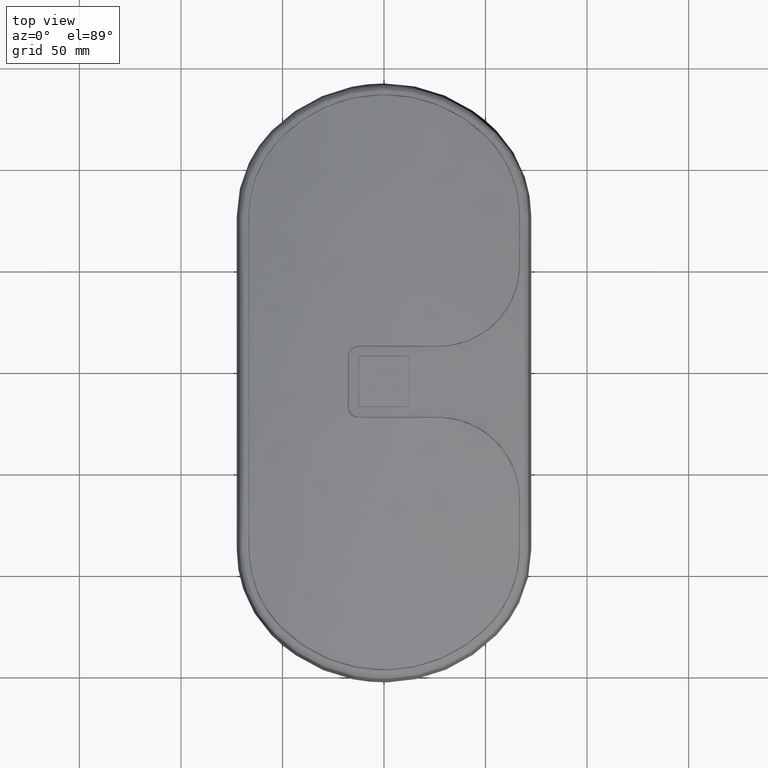
[diagram: clean part render]
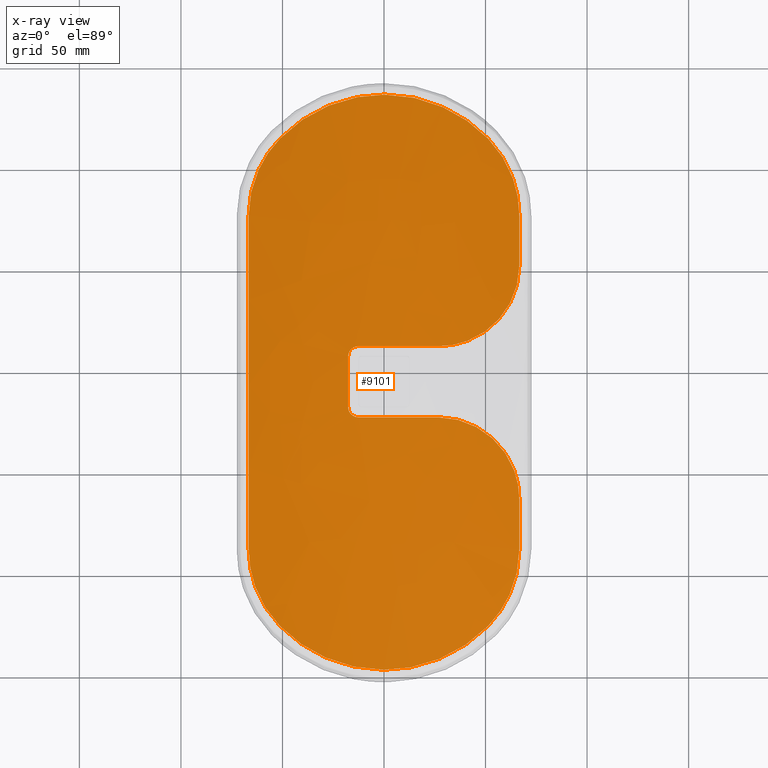
[diagram: x-ray — body ghosted, one internal face saturated and labeled with its STEP entity id]
A machine part, top view, then the same camera in x-ray: the body is ghosted and one INTERNAL B-rep face — a face not visible from any outside direction — is saturated and labeled: STEP entity #9101.
In plain terms, the highlighted face is a freeform B-spline surface patch.
Its self-contained STEP definition (entity closure, byte-faithful):
#6 = CARTESIAN_POINT ( 'NONE',  ( -10.86845133219649817, -99.88406189619740871, 195.4578889195691147 ) ) ;
#11 = CARTESIAN_POINT ( 'NONE',  ( 44.19579688673636042, -82.98597418233897827, 194.0003798034920806 ) ) ;
#42 = CARTESIAN_POINT ( 'NONE',  ( 61.55103698957692870, 5.457877891611070176, 200.5412568197478436 ) ) ;
#93 = CARTESIAN_POINT ( 'NONE',  ( -15.32122995263451948, -96.56639725986448752, 195.5887616676681375 ) ) ;
#97 = CARTESIAN_POINT ( 'NONE',  ( -2.393900368848504545, 185.0730993952077483, 195.8147413070358027 ) ) ;
#127 = CARTESIAN_POINT ( 'NONE',  ( -67.39078578683019316, 140.0421699867345922, 194.3001971569460125 ) ) ;
#131 = CARTESIAN_POINT ( 'NONE',  ( 61.27761717797284291, 149.2239221105816114, 193.0671699322844290 ) ) ;
#176 = CARTESIAN_POINT ( 'NONE',  ( 47.83212296978011580, -79.93836249783592507, 193.7271333310420118 ) ) ;
#203 = CARTESIAN_POINT ( 'NONE',  ( 51.49204318280401793, 17.27061767772977063, 203.9136234275749757 ) ) ;
#204 = CARTESIAN_POINT ( 'NONE',  ( 22.68770224404190117, 140.0434891847485801, 204.3774843817956253 ) ) ;
#229 = CARTESIAN_POINT ( 'NONE',  ( 26.64111920286593360, 60.91993920219265846, 208.8467953270715327 ) ) ;
#250 = CARTESIAN_POINT ( 'NONE',  ( 32.16443781715616979, -90.59253444420407675, 194.8213298773472957 ) ) ;
#256 = CARTESIAN_POINT ( 'NONE',  ( -28.91925437094565154, 178.9783870442439309, 195.0086557970860213 ) ) ;
#269 = EDGE_CURVE ( 'Defeatured_0_17+Defeatured_0_10+Defeatured_0_9+Defeatured_0_11', #8797, #14700, #798, .T. ) ;
#275 = CARTESIAN_POINT ( 'NONE',  ( -16.62719656224668796, 27.87164152967057973, 209.9206235047949178 ) ) ;
#277 = CARTESIAN_POINT ( 'NONE',  ( 53.00954735621476743, 16.02679873206650996, 203.4787835579905391 ) ) ;
#278 = CARTESIAN_POINT ( 'NONE',  ( 11.56936859132130202, 91.73886852043558804, 210.5169212958876983 ) ) ;
#324 = CARTESIAN_POINT ( 'NONE',  ( -66.64208991724485998, 129.1730435644680597, 194.3204679816685143 ) ) ;
#356 = CARTESIAN_POINT ( 'NONE',  ( -58.12672842373760318, 91.73904579234459788, 202.9928323966905737 ) ) ;
#408 = B_SPLINE_CURVE_WITH_KNOTS ( 'NONE', 3,
 ( #6203, #8180, #5863, #12966, #6907, #131, #10729, #11769, #9458, #3495, #3259, #11932, #13042, #14396, #4970, #15333 ),
 .UNSPECIFIED., .F., .F.,
 ( 4, 2, 2, 2, 2, 2, 2, 4 ),
 ( 1.389512421408388951E-16, 0.01048953606909416164, 0.01573430410364117307, 0.02097907213818818450, 0.02622384017273520634, 0.02884622419000867910, 0.03146860820728215186, 0.04195814427637589716 ),
 .UNSPECIFIED. ) ;
#436 = CARTESIAN_POINT ( 'NONE',  ( -67.39078434659579386, -53.19007413596056466, 194.3001930701857987 ) ) ;
#506 = CARTESIAN_POINT ( 'NONE',  ( -69.12355918883129391, -4.886616579301270136, 199.2171824689564517 ) ) ;
#507 = EDGE_CURVE ( 'Defeatured_0_17+Defeatured_0_6+Defeatured_0_5+Defeatured_0_7', #8581, #14769, #408, .T. ) ;
#539 = CARTESIAN_POINT ( 'NONE',  ( 46.68188987107377130, 66.29628765974824489, 205.1812054506003165 ) ) ;
#540 = CARTESIAN_POINT ( 'NONE',  ( 42.27875346003234114, 171.2898749563198066, 194.1429210588339913 ) ) ;
#556 = CARTESIAN_POINT ( 'NONE',  ( -36.26838899208387090, -88.35489307148847615, 194.5619996797805697 ) ) ;
#588 = CARTESIAN_POINT ( 'NONE',  ( 48.42577529310789686, -99.88556568018931614, 189.4605208246317147 ) ) ;
#670 = CARTESIAN_POINT ( 'NONE',  ( 29.08837067963010270, -4.887392491449774390, 208.8363009730052511 ) ) ;
#744 = CARTESIAN_POINT ( 'NONE',  ( 45.42020619370499901, -53.19126285975996637, 200.6091582931774440 ) ) ;
#772 = CARTESIAN_POINT ( 'NONE',  ( 64.49322646180976903, 87.97155844630171373, 199.2006411322924180 ) ) ;
#798 = B_SPLINE_CURVE_WITH_KNOTS ( 'NONE', 3,
 ( #5258, #3760, #5028, #2578, #12438, #8610, #3832, #6370, #6221, #11007, #8689, #7491, #6138, #1375, #12206, #2655, #13471, #12510, #11086, #13694 ),
 .UNSPECIFIED., .F., .F.,
 ( 4, 2, 2, 2, 2, 2, 2, 2, 2, 4 ),
 ( 3.469446951953614189E-18, 0.0009771675545568001432, 0.001465751331835198372, 0.001954335109113596817, 0.002931502663670385467, 0.003908670218227174552, 0.004885837772783964070, 0.005863005327340751853, 0.006840172881897541371, 0.007817340436454330022 ),
 .UNSPECIFIED. ) ;
#854 = CARTESIAN_POINT ( 'NONE',  ( 66.64114949925664177, 98.24303119079422686, 197.7082447678883739 ) ) ;
#862 = VERTEX_POINT ( 'NONE', #4552 ) ;
#1032 = CARTESIAN_POINT ( 'NONE',  ( -64.86447545474278797, -52.60111890020306191, 193.4459904745401673 ) ) ;
#1164 = CARTESIAN_POINT ( 'NONE',  ( 29.30656831340549218, 25.91995794331132075, 208.5105895920193007 ) ) ;
#1260 = CARTESIAN_POINT ( 'NONE',  ( -62.00657064532256868, -60.79948331485316260, 193.0952046008787590 ) ) ;
#1280 = CARTESIAN_POINT ( 'NONE',  ( -59.63194501122929836, 152.3132749765679250, 193.0607593271341784 ) ) ;
#1286 = CARTESIAN_POINT ( 'NONE',  ( -9.541060714184581570, 184.4406245990692810, 195.7283543516239490 ) ) ;
#1307 = CARTESIAN_POINT ( 'NONE',  ( -17.48312617921987666, 29.62689727286549868, 209.8901184210132271 ) ) ;
#1311 = CARTESIAN_POINT ( 'NONE',  ( 69.11565091435801378, 91.73886890376958547, 199.2131056313251065 ) ) ;
#1333 = CARTESIAN_POINT ( 'NONE',  ( -66.64037681888412123, 125.6884412940841571, 194.7753988512430396 ) ) ;
#1340 = CARTESIAN_POINT ( 'NONE',  ( 0.4593757799958043675, 60.91995793730247755, 210.6277050054260087 ) ) ;
#1365 = CARTESIAN_POINT ( 'NONE',  ( -16.57840404618952235, 183.1612583401040695, 195.5537132133451053 ) ) ;
#1375 = CARTESIAN_POINT ( 'NONE',  ( -16.98691517925766092, 58.43055370001520998, 209.9046605951380684 ) ) ;
#1393 = CARTESIAN_POINT ( 'NONE',  ( 66.64120984125983682, 117.4496942195145124, 195.8254337475949569 ) ) ;
#1394 = CARTESIAN_POINT ( 'NONE',  ( 67.38991157764669993, 140.0424819250056316, 194.2961119366260334 ) ) ;
#1445 = CARTESIAN_POINT ( 'NONE',  ( -63.31307450575034323, 144.4401428913806740, 193.1896955776973641 ) ) ;
#1450 = CARTESIAN_POINT ( 'NONE',  ( -33.23319933961029449, 176.8952261641586006, 194.7568251100058774 ) ) ;
#1478 = CARTESIAN_POINT ( 'NONE',  ( 64.48886775854057873, -1.069626879226956317, 199.2067098573686224 ) ) ;
#1479 = CARTESIAN_POINT ( 'NONE',  ( 5.695258208661610588, 140.0420314953855723, 205.5391116499234272 ) ) ;
#1521 = CARTESIAN_POINT ( 'NONE',  ( 11.90640710486456122, -97.22878894683586282, 195.6806544764669411 ) ) ;
#1551 = CARTESIAN_POINT ( 'NONE',  ( -34.92815747985240193, 91.73946109866356835, 207.8703741651306700 ) ) ;
#1582 = ORIENTED_EDGE ( 'NONE', *, *, #13094, .T. ) ;
#1594 = CARTESIAN_POINT ( 'NONE',  ( -51.25888823908042724, 163.4522663118064543, 193.4712999229875834 ) ) ;
#1611 = CARTESIAN_POINT ( 'NONE',  ( -66.64209007335939816, 112.0428289692929695, 196.5259336558687835 ) ) ;
#1621 = CARTESIAN_POINT ( 'NONE',  ( -13.95142408352167429, 26.08098689405976600, 210.0695824270967478 ) ) ;
#1626 = CARTESIAN_POINT ( 'NONE',  ( 64.05323042201339945, 186.7366601352135831, 184.7899919721032518 ) ) ;
#1650 = CARTESIAN_POINT ( 'NONE',  ( -51.25909438623873626, -76.59992893920420443, 193.4712830558305825 ) ) ;
#1701 = CARTESIAN_POINT ( 'NONE',  ( 40.79549444014219972, 43.42604775078962120, 206.9001175110504676 ) ) ;
#1715 = VERTEX_POINT ( 'NONE', #8112 ) ;
#1734 = CARTESIAN_POINT ( 'NONE',  ( 35.17408531014780237, 61.83508960150948042, 207.5760873358714207 ) ) ;
#1736 = CARTESIAN_POINT ( 'NONE',  ( 47.82945149417389530, 166.7933028539416682, 193.7273406819197419 ) ) ;
#1780 = CARTESIAN_POINT ( 'NONE',  ( 58.90698003452750697, -99.88496339122451673, 186.5611264845521191 ) ) ;
#1790 = CARTESIAN_POINT ( 'NONE',  ( 53.70865868640738938, -74.08894832792108787, 193.2903829577732040 ) ) ;
#1814 = CARTESIAN_POINT ( 'NONE',  ( 23.36184137163460761, 181.1906883018984615, 195.2906358225356485 ) ) ;
#1831 = CARTESIAN_POINT ( 'NONE',  ( -47.83029589753083144, -79.94120819631197605, 193.7256569380514861 ) ) ;
#1861 = B_SPLINE_CURVE_WITH_KNOTS ( 'NONE', 3,
 ( #8707, #1164, #14819, #6006, #6153, #10870, #5043, #3705, #15715, #4808, #7506, #9688, #6079, #11101, #203, #277, #8549, #13484, #2595, #9919, #12378, #14522, #42, #2446, #13417, #14745, #1478, #3623, #11026, #8476, #13338, #4877, #6314, #11171 ),
 .UNSPECIFIED., .F., .F.,
 ( 4, 2, 2, 2, 2, 2, 2, 2, 2, 2, 2, 2, 2, 2, 2, 2, 4 ),
 ( 0.0000000000000000000, 0.007942148595555895835, 0.01191322289333386283, 0.01389876004222283766, 0.01588429719111181249, 0.02382644578666764934, 0.02581198293555660855, 0.02779752008444556777, 0.03176859438222349313, 0.03971074297777932305, 0.04169628012666827532, 0.04368181727555722066, 0.04765289157333512521, 0.05162396587111302282, 0.05360950302000198897, 0.05559504016889095512, 0.06353718876444680586 ),
 .UNSPECIFIED. ) ;
#1866 = CARTESIAN_POINT ( 'NONE',  ( 17.01118603917529981, -53.19088900911937401, 204.8433658646745243 ) ) ;
#1896 = CARTESIAN_POINT ( 'NONE',  ( 31.93408112266914856, 61.18363157118347573, 208.1238406403484191 ) ) ;
#1946 = CARTESIAN_POINT ( 'NONE',  ( 5.823086962531080601, 43.42604775102459769, 210.7531069119989695 ) ) ;
#1982 = B_SPLINE_CURVE_WITH_KNOTS ( 'NONE', 3,
 ( #9966, #4934, #176, #11, #4851, #8755, #3899, #9886, #250, #14644, #2564, #3974, #2720, #7557, #8836, #14569, #1521, #3749, #11217, #2490, #6128, #13684, #3672, #8524, #10993, #93, #12270, #7714, #4286, #15094, #12653, #4208, #11372, #6440, #556, #5246, #4126, #7861, #4046, #1831, #11298, #9154 ),
 .UNSPECIFIED., .F., .F.,
 ( 4, 2, 2, 2, 2, 2, 2, 2, 2, 2, 2, 2, 2, 2, 2, 2, 2, 2, 2, 2, 4 ),
 ( 0.0000000000000000000, 0.007112124180461031585, 0.01422424836092206317, 0.02133637254138309389, 0.02489243463161361358, 0.02844849672184412287, 0.03556062090230514838, 0.04267274508276617390, 0.04622880717299668318, 0.04978486926322718553, 0.05689699344368821105, 0.06400911762414922268, 0.07112124180461026901, 0.07467730389484077136, 0.07823336598507128758, 0.08534549016553236167, 0.09245761434599340800, 0.09601367643622395198, 0.09956973852645448209, 0.1066818627069155700, 0.1137939868873766303 ),
 .UNSPECIFIED. ) ;
#2233 = CARTESIAN_POINT ( 'NONE',  ( -65.28408246139946414, -50.89993184557577166, 193.5595931319872705 ) ) ;
#2417 = CARTESIAN_POINT ( 'NONE',  ( 9.439177540592357474, 184.4836592196471088, 195.7357918055488710 ) ) ;
#2446 = CARTESIAN_POINT ( 'NONE',  ( 62.47968044737748272, 3.733138582279587503, 200.1540966411544105 ) ) ;
#2479 = CARTESIAN_POINT ( 'NONE',  ( -17.65040047413037172, 55.91994962290539206, 209.9022747741108503 ) ) ;
#2490 = CARTESIAN_POINT ( 'NONE',  ( 4.770567369397487489, -98.10097192189518012, 195.7994440407218804 ) ) ;
#2494 = CARTESIAN_POINT ( 'NONE',  ( -42.30970844283091736, 171.2670822227914584, 194.1397869298681940 ) ) ;
#2519 = CARTESIAN_POINT ( 'NONE',  ( 0.009409056436577425964, 186.7360693584656133, 195.4584239088570428 ) ) ;
#2564 = CARTESIAN_POINT ( 'NONE',  ( 28.91833193756821885, -92.12628074902224284, 195.0081067602606026 ) ) ;
#2578 = CARTESIAN_POINT ( 'NONE',  ( -13.78311636226125714, 60.79268610541606677, 210.0798319855839509 ) ) ;
#2595 = CARTESIAN_POINT ( 'NONE',  ( 58.37100108725392289, 10.41591496485720292, 201.7622841137673220 ) ) ;
#2596 = CARTESIAN_POINT ( 'NONE',  ( -11.54801681910679889, 91.73869061709055472, 210.7521766883074008 ) ) ;
#2655 = CARTESIAN_POINT ( 'NONE',  ( -17.39258835317728114, 57.53799820048261893, 209.8911348158587202 ) ) ;
#2669 = CARTESIAN_POINT ( 'NONE',  ( -14.86663203364649455, 26.42615204061637968, 210.0162660645605115 ) ) ;
#2675 = CARTESIAN_POINT ( 'NONE',  ( 21.71468203972750288, 186.7380845602075965, 194.3601956080723312 ) ) ;
#2704 = CARTESIAN_POINT ( 'NONE',  ( -6.097575083703405951, 60.91995792500372886, 210.5375000639573955 ) ) ;
#2720 = CARTESIAN_POINT ( 'NONE',  ( 23.39959961708584757, -94.32525705307114094, 195.2888850584054978 ) ) ;
#2745 = CARTESIAN_POINT ( 'NONE',  ( 40.79549465046640222, 91.73938695860358905, 206.9001185768895823 ) ) ;
#2819 = CARTESIAN_POINT ( 'NONE',  ( -15.70334529225405440, 26.94659539381119373, 209.9689734971502162 ) ) ;
#2824 = CARTESIAN_POINT ( 'NONE',  ( 45.42020716600390529, 140.0433587101815931, 200.6091625102581304 ) ) ;
#2894 = VERTEX_POINT ( 'NONE', #2984 ) ;
#2905 = CARTESIAN_POINT ( 'NONE',  ( 40.79549422981789775, -4.887291457025183306, 206.9001164452114381 ) ) ;
#2934 = CARTESIAN_POINT ( 'NONE',  ( 37.09717871627995578, 62.30511244306843821, 207.2328638566079917 ) ) ;
#2956 = CARTESIAN_POINT ( 'NONE',  ( -51.25909438623873626, -76.59992893920420443, 193.4712830558305825 ) ) ;
#2983 = CARTESIAN_POINT ( 'NONE',  ( 34.10191695677119839, -53.19151693193737174, 202.7337734640085216 ) ) ;
#2984 = CARTESIAN_POINT ( 'NONE',  ( -12.65039027342100653, 25.91997952601329658, 210.1474963628729711 ) ) ;
#2992 = CARTESIAN_POINT ( 'NONE',  ( 60.05760764773793881, -64.69248173888408360, 193.0585514708386370 ) ) ;
#3013 = CARTESIAN_POINT ( 'NONE',  ( 49.58211373339977968, 165.1712767492587943, 193.5940771248087060 ) ) ;
#3015 = ORIENTED_EDGE ( 'NONE', *, *, #7036, .T. ) ;
#3056 = CARTESIAN_POINT ( 'NONE',  ( 21.71468142565610293, -99.88598803704196882, 194.3601892861784108 ) ) ;
#3088 = CARTESIAN_POINT ( 'NONE',  ( 48.35763883435514998, 67.32198269107728095, 204.7595831526581094 ) ) ;
#3093 = CARTESIAN_POINT ( 'NONE',  ( 51.25828425984664705, 163.4521027640088278, 193.4724509442656313 ) ) ;
#3137 = CARTESIAN_POINT ( 'NONE',  ( 34.94193263002610195, 43.42604775077360557, 207.8682097805314584 ) ) ;
#3168 = CARTESIAN_POINT ( 'NONE',  ( 44.39517011149664683, 65.05229186036891065, 205.7280825555959041 ) ) ;
#3217 = CARTESIAN_POINT ( 'NONE',  ( -23.29277565484089862, -4.887205217898885401, 209.8041921264355665 ) ) ;
#3259 = CARTESIAN_POINT ( 'NONE',  ( 64.86358196790668273, 139.4532939171070609, 193.4430886384439532 ) ) ;
#3266 = EDGE_CURVE ( 'Defeatured_0_17+Defeatured_0_5+Defeatured_0_4+Defeatured_0_6', #13526, #8581, #13706, .T. ) ;
#3414 = CARTESIAN_POINT ( 'NONE',  ( -61.27853191041602798, -62.37172566107424387, 193.0685019542526391 ) ) ;
#3495 = CARTESIAN_POINT ( 'NONE',  ( 64.63325482021957669, 140.2981831697539405, 193.3921055481112887 ) ) ;
#3578 = CARTESIAN_POINT ( 'NONE',  ( 20.12805316324306659, 25.91995796289856813, 209.6646659520728804 ) ) ;
#3623 = CARTESIAN_POINT ( 'NONE',  ( 65.06649536633338471, -2.947816007115514836, 198.8864845126773844 ) ) ;
#3672 = CARTESIAN_POINT ( 'NONE',  ( -4.717730581295496606, -98.10384646187515045, 195.7988916798776984 ) ) ;
#3692 = CARTESIAN_POINT ( 'NONE',  ( -66.64209007340949142, -25.19072575251338009, 196.5259307284082126 ) ) ;
#3705 = CARTESIAN_POINT ( 'NONE',  ( 40.77999248255956388, 23.34359917280568908, 206.5131319960536018 ) ) ;
#3706 = CARTESIAN_POINT ( 'NONE',  ( 10.88149272561120107, 186.7366492584055777, 195.2410651575373493 ) ) ;
#3749 = CARTESIAN_POINT ( 'NONE',  ( 9.540213789033092695, -97.58849444396010142, 195.7298085030337802 ) ) ;
#3753 = CARTESIAN_POINT ( 'NONE',  ( 4.716817172772784339, 184.9559746785972720, 195.7998197844677293 ) ) ;
#3760 = CARTESIAN_POINT ( 'NONE',  ( -12.98016530119763168, 60.91995791659861936, 210.1273393881733682 ) ) ;
#3772 = CARTESIAN_POINT ( 'NONE',  ( -17.65040041097078927, 30.91996690128928549, 209.9020482966034535 ) ) ;
#3777 = CARTESIAN_POINT ( 'NONE',  ( 0.03271905309616225666, 91.73865844554357807, 210.7527975627878050 ) ) ;
#3802 = CARTESIAN_POINT ( 'NONE',  ( -12.65039033199719931, 60.91993701594877564, 210.1478128619461359 ) ) ;
#3820 = CARTESIAN_POINT ( 'NONE',  ( -53.70956410742882525, 160.9410453432122381, 193.2891730448909016 ) ) ;
#3832 = CARTESIAN_POINT ( 'NONE',  ( -14.41100685612908094, 60.60260571962164278, 210.0430217430327957 ) ) ;
#3836 = CARTESIAN_POINT ( 'NONE',  ( -66.64208894948868078, 36.53115632219954989, 200.0516679394677340 ) ) ;
#3846 = CARTESIAN_POINT ( 'NONE',  ( -17.33201604806939145, 29.15652627591698121, 209.8926801850375057 ) ) ;
#3851 = CARTESIAN_POINT ( 'NONE',  ( 66.64120989170065457, 109.1917493193511746, 196.7265026157788839 ) ) ;
#3899 = CARTESIAN_POINT ( 'NONE',  ( 36.37422513473096330, -88.32636439878916690, 194.5571823157103211 ) ) ;
#3928 = CARTESIAN_POINT ( 'NONE',  ( 63.61585757295849675, 91.73901047582258172, 201.1022267262566174 ) ) ;
#3974 = CARTESIAN_POINT ( 'NONE',  ( 25.62812638307881130, -93.51486060395329503, 195.1827192599959631 ) ) ;
#3987 = CARTESIAN_POINT ( 'NONE',  ( -66.64208927069719834, 70.89799124537101704, 199.4990878374438807 ) ) ;
#4000 = CARTESIAN_POINT ( 'NONE',  ( 69.11565055423079684, 43.42604775095259839, 199.2131046052765839 ) ) ;
#4010 = CARTESIAN_POINT ( 'NONE',  ( 64.88288196115047413, -52.63119233775428540, 193.4341916224720705 ) ) ;
#4046 = CARTESIAN_POINT ( 'NONE',  ( -44.17863548683383357, -83.00051204525557580, 194.0004516101314493 ) ) ;
#4073 = CARTESIAN_POINT ( 'NONE',  ( -11.31619543239339798, -53.19003160774467176, 205.5382221874644131 ) ) ;
#4126 = CARTESIAN_POINT ( 'NONE',  ( -39.32054492282526326, -86.45474191680253284, 194.3531238413971494 ) ) ;
#4161 = CARTESIAN_POINT ( 'NONE',  ( 57.99961209537489992, -4.887039868498380457, 202.7831185702149810 ) ) ;
#4193 = CARTESIAN_POINT ( 'NONE',  ( 25.58856729974290900, 180.3816710375307082, 195.1846292771420792 ) ) ;
#4208 = CARTESIAN_POINT ( 'NONE',  ( -29.95421582879932387, -91.69143405646522638, 194.9540179719603827 ) ) ;
#4243 = CARTESIAN_POINT ( 'NONE',  ( 32.47755396922690352, -99.88617514172531742, 192.8072581479186169 ) ) ;
#4286 = CARTESIAN_POINT ( 'NONE',  ( -19.95618486842881012, -95.38779768155104932, 195.4297178889036104 ) ) ;
#4318 = CARTESIAN_POINT ( 'NONE',  ( 37.83876680492989664, -99.88603030644132730, 191.9176716223851997 ) ) ;
#4402 = CARTESIAN_POINT ( 'NONE',  ( 69.11565019410359412, -4.886773401864469513, 199.2131035792281750 ) ) ;
#4433 = CARTESIAN_POINT ( 'NONE',  ( 64.70241172700181664, 88.60009045443696607, 199.0895401573146444 ) ) ;
#4534 = EDGE_CURVE ( 'Defeatured_0_17+Defeatured_0_11+Defeatured_0_10+Defeatured_0_12', #14700, #5715, #13155, .T. ) ;
#4552 = CARTESIAN_POINT ( 'NONE',  ( 66.63949904577353323, -38.83631606035156381, 194.7713954986926694 ) ) ;
#4782 = VERTEX_POINT ( 'NONE', #1650 ) ;
#4808 = CARTESIAN_POINT ( 'NONE',  ( 44.40958608503300553, 21.85212851254254929, 205.7387451950136494 ) ) ;
#4851 = CARTESIAN_POINT ( 'NONE',  ( 42.30884074024581309, -84.41494999563781221, 194.1406800951404534 ) ) ;
#4866 = CARTESIAN_POINT ( 'NONE',  ( -66.64208983616539683, -11.51405534373888884, 197.8435921204051908 ) ) ;
#4874 = CARTESIAN_POINT ( 'NONE',  ( -12.98012335803393036, 25.91995791619346434, 210.1270243586888000 ) ) ;
#4877 = CARTESIAN_POINT ( 'NONE',  ( 66.37524509227725389, -8.762872613688918122, 198.0166416720281006 ) ) ;
#4878 = CARTESIAN_POINT ( 'NONE',  ( 48.42577690245470023, 186.7376622034286129, 189.4605269692684431 ) ) ;
#4934 = CARTESIAN_POINT ( 'NONE',  ( 49.58151022564477728, -78.31975675904381262, 193.5941215829020621 ) ) ;
#4940 = CARTESIAN_POINT ( 'NONE',  ( 2.350230390429199456, 185.0745295348091872, 195.8153988329987101 ) ) ;
#4967 = CARTESIAN_POINT ( 'NONE',  ( 23.19123947688530052, 91.73937533387157828, 209.5588158520186823 ) ) ;
#4970 = CARTESIAN_POINT ( 'NONE',  ( 66.64120994789067254, 129.1728609108808712, 194.3166543315988690 ) ) ;
#4990 = CARTESIAN_POINT ( 'NONE',  ( -17.65040041097078927, 30.91996690128928549, 209.9020482966034535 ) ) ;
#5017 = CARTESIAN_POINT ( 'NONE',  ( -38.39896663720590908, 173.9372760865140037, 194.4189644585115673 ) ) ;
#5028 = CARTESIAN_POINT ( 'NONE',  ( -13.30450457353537352, 60.88765859916774303, 210.1080867237415077 ) ) ;
#5031 = CARTESIAN_POINT ( 'NONE',  ( -66.64208927347469569, 15.91056223900288025, 199.4972061084293671 ) ) ;
#5043 = CARTESIAN_POINT ( 'NONE',  ( 39.53981614676726508, 23.78894332178216331, 206.7646265385762945 ) ) ;
#5044 = CARTESIAN_POINT ( 'NONE',  ( 0.02477359743495434821, 140.0420634831015718, 205.5388166069683109 ) ) ;
#5091 = CARTESIAN_POINT ( 'NONE',  ( -65.30276005484579116, 137.7919012783608537, 193.5493445400834389 ) ) ;
#5092 = ORIENTED_EDGE ( 'NONE', *, *, #507, .T. ) ;
#5111 = CARTESIAN_POINT ( 'NONE',  ( -66.64208940723284513, 77.76959242129190386, 199.1676501619197950 ) ) ;
#5120 = CARTESIAN_POINT ( 'NONE',  ( -14.26580751735133212, 26.17692782221901737, 210.0511358340314132 ) ) ;
#5122 = CARTESIAN_POINT ( 'NONE',  ( 32.47755499435940152, 186.7382716648505436, 192.8072644125243187 ) ) ;
#5198 = CARTESIAN_POINT ( 'NONE',  ( -53.74484939393150285, 186.7371436911045919, 188.3367397445451275 ) ) ;
#5232 = VERTEX_POINT ( 'NONE', #10203 ) ;
#5246 = CARTESIAN_POINT ( 'NONE',  ( -38.31574406559420964, -87.10390109758614585, 194.4232678394815537 ) ) ;
#5258 = CARTESIAN_POINT ( 'NONE',  ( -12.65039033199719931, 60.91993701594877564, 210.1478128619461359 ) ) ;
#5274 = CARTESIAN_POINT ( 'NONE',  ( 23.19123926677150038, -4.887279832286081316, 209.5588136895916307 ) ) ;
#5319 = EDGE_CURVE ( 'Defeatured_0_17+Defeatured_0_15+Defeatured_0_14+Defeatured_0_16', #10881, #862, #11643, .T. ) ;
#5347 = CARTESIAN_POINT ( 'NONE',  ( 66.63967254672222396, 100.9195457538187810, 197.4738995802715351 ) ) ;
#5348 = CARTESIAN_POINT ( 'NONE',  ( 50.97584893958779872, -53.19108952457206385, 199.1969404697074424 ) ) ;
#5378 = CARTESIAN_POINT ( 'NONE',  ( 65.28010152852066028, 90.49053835035607563, 198.7681829392903978 ) ) ;
#5434 = CARTESIAN_POINT ( 'NONE',  ( 11.56936854236700185, 43.42604775095259839, 210.5169202091794887 ) ) ;
#5442 = CARTESIAN_POINT ( 'NONE',  ( 66.63949904577353323, -38.83631606035156381, 194.7713954986926694 ) ) ;
#5465 = EDGE_CURVE ( 'Defeatured_0_17+Defeatured_0_4+Defeatured_0_3+Defeatured_0_5', #8850, #13526, #14121, .T. ) ;
#5505 = EDGE_CURVE ( 'Defeatured_0_17+Defeatured_0_1+Defeatured_0_16+Defeatured_0_2', #12957, #4782, #1982, .T. ) ;
#5513 = CARTESIAN_POINT ( 'NONE',  ( -56.63322718991850024, -53.19073721325337090, 197.9963257705003343 ) ) ;
#5522 = CARTESIAN_POINT ( 'NONE',  ( 62.00464409015204126, -60.79694893193914851, 193.0943135128028700 ) ) ;
#5568 = CARTESIAN_POINT ( 'NONE',  ( 66.64120984124522806, -30.60162040030805741, 195.8249122261088928 ) ) ;
#5587 = CARTESIAN_POINT ( 'NONE',  ( 5.695258102443521153, -53.18993564457176859, 205.5391073162907389 ) ) ;
#5703 = CARTESIAN_POINT ( 'NONE',  ( 26.64111920286593360, 60.91993920219265846, 208.8467953270715327 ) ) ;
#5715 = VERTEX_POINT ( 'NONE', #4990 ) ;
#5786 = CARTESIAN_POINT ( 'NONE',  ( -58.78535336546235612, -66.95754845294085555, 193.0660829568352312 ) ) ;
#5863 = CARTESIAN_POINT ( 'NONE',  ( 55.90076141515196184, 158.2194005701664423, 193.1574892347674961 ) ) ;
#5980 = CARTESIAN_POINT ( 'NONE',  ( -44.19665037594081980, 169.8381184475488510, 193.9991018742439621 ) ) ;
#6006 = CARTESIAN_POINT ( 'NONE',  ( 35.76220726888853818, 24.88807563810991041, 207.4766429562119754 ) ) ;
#6031 = CARTESIAN_POINT ( 'NONE',  ( -64.63415099852205969, -53.44600157513747263, 193.3949030928927186 ) ) ;
#6079 = CARTESIAN_POINT ( 'NONE',  ( 49.92651225787737701, 18.45025262046236492, 204.3455412103557194 ) ) ;
#6114 = CARTESIAN_POINT ( 'NONE',  ( -12.65039027342100653, 25.91997952601329658, 210.1474963628729711 ) ) ;
#6128 = CARTESIAN_POINT ( 'NONE',  ( 2.393010562446490574, -98.22097411132219236, 195.8152103476554657 ) ) ;
#6131 = CARTESIAN_POINT ( 'NONE',  ( -8.346096968990613263, 184.5917634329673263, 195.7490796230371188 ) ) ;
#6138 = CARTESIAN_POINT ( 'NONE',  ( -16.62099839749684804, 58.97651212946144739, 209.9212023646799423 ) ) ;
#6149 = CARTESIAN_POINT ( 'NONE',  ( -17.38789660100031398, 29.31267465411611184, 209.8914083377785289 ) ) ;
#6153 = CARTESIAN_POINT ( 'NONE',  ( 37.03064517412516921, 24.56943824123075970, 207.2482918316299561 ) ) ;
#6154 = CARTESIAN_POINT ( 'NONE',  ( 46.59002028201100387, 91.73930967007356685, 205.6829364123528876 ) ) ;
#6203 = CARTESIAN_POINT ( 'NONE',  ( 51.25828425984664705, 163.4521027640088278, 193.4724509442656313 ) ) ;
#6221 = CARTESIAN_POINT ( 'NONE',  ( -15.15175156858107464, 60.26161144078923115, 210.0002224244498450 ) ) ;
#6238 = CARTESIAN_POINT ( 'NONE',  ( 50.97585003585709984, 140.0431853750455957, 199.1969446554620049 ) ) ;
#6284 = CARTESIAN_POINT ( 'NONE',  ( -61.27393494134738461, 149.2251345054164915, 193.0697776999610085 ) ) ;
#6288 = CARTESIAN_POINT ( 'NONE',  ( -13.08151167853963237, 183.8721721022741349, 195.6505893753889893 ) ) ;
#6303 = CARTESIAN_POINT ( 'NONE',  ( -66.64208904425338176, 29.65073642808424381, 199.9402175421126913 ) ) ;
#6314 = CARTESIAN_POINT ( 'NONE',  ( 66.64114917672362992, -11.40309765175994983, 197.7072026587730704 ) ) ;
#6316 = CARTESIAN_POINT ( 'NONE',  ( -22.76910542164259965, 140.0433407446886065, 204.6161266654272310 ) ) ;
#6370 = CARTESIAN_POINT ( 'NONE',  ( -14.86476012684145331, 60.41484053399926069, 210.0166814756034341 ) ) ;
#6389 = CARTESIAN_POINT ( 'NONE',  ( -34.09195137724690028, 140.0436598471495984, 202.7356461881315113 ) ) ;
#6440 = CARTESIAN_POINT ( 'NONE',  ( -35.23230038780054940, -88.95275569549976069, 194.6301396959710246 ) ) ;
#6472 = CARTESIAN_POINT ( 'NONE',  ( -34.92815730536570129, 43.42604775076561197, 207.8703730936426837 ) ) ;
#6515 = CARTESIAN_POINT ( 'NONE',  ( 66.63967223509901316, -14.07962908301998972, 197.4728058449374828 ) ) ;
#6544 = CARTESIAN_POINT ( 'NONE',  ( 46.59002003789840529, 43.42604775081360202, 205.6829353535861742 ) ) ;
#6621 = CARTESIAN_POINT ( 'NONE',  ( 28.41616853426690525, -53.19161743597046410, 203.6751110504357314 ) ) ;
#6632 = CARTESIAN_POINT ( 'NONE',  ( 65.30224091488327076, -50.93815765772534832, 193.5463639581767268 ) ) ;
#6653 = CARTESIAN_POINT ( 'NONE',  ( 53.07134861004912096, 70.78447614203429339, 203.4727868878418917 ) ) ;
#6708 = CARTESIAN_POINT ( 'NONE',  ( 46.59001979378589908, -4.887214168446382345, 205.6829342948193471 ) ) ;
#6788 = CARTESIAN_POINT ( 'NONE',  ( -46.56353884663349874, 43.42604775071459500, 205.9365529782296562 ) ) ;
#6907 = CARTESIAN_POINT ( 'NONE',  ( 59.66749247658400890, 152.3021841341567608, 193.0532418568491551 ) ) ;
#7036 = EDGE_CURVE ( 'Defeatured_0_17+Defeatured_0_13+Defeatured_0_12+Defeatured_0_14', #2894, #1715, #15407, .T. ) ;
#7080 = CARTESIAN_POINT ( 'NONE',  ( -53.74484757108040611, -99.88504716775996428, 188.3367336483941017 ) ) ;
#7157 = CARTESIAN_POINT ( 'NONE',  ( 5.448339236208322056, -99.88392830429349090, 195.4586818609229226 ) ) ;
#7167 = CARTESIAN_POINT ( 'NONE',  ( -49.58235678362888876, 165.1719128172624380, 193.5924582619509522 ) ) ;
#7220 = CARTESIAN_POINT ( 'NONE',  ( -59.66840710656008184, -65.44999795860482550, 193.0539241822529561 ) ) ;
#7249 = CARTESIAN_POINT ( 'NONE',  ( 15.32030741446156163, 183.4185329578123458, 195.5901393280954892 ) ) ;
#7300 = CARTESIAN_POINT ( 'NONE',  ( -66.64037681857446671, -38.83631530148022648, 194.7753970695995349 ) ) ;
#7308 = CARTESIAN_POINT ( 'NONE',  ( -17.65043900365025920, 47.58742886783983295, 210.0568198178368107 ) ) ;
#7320 = CARTESIAN_POINT ( 'NONE',  ( -55.89065329184284536, 158.2237461922504735, 193.1590770517007627 ) ) ;
#7324 = CARTESIAN_POINT ( 'NONE',  ( -25.62903907469846487, 180.3669735063501491, 195.1829489380170912 ) ) ;
#7330 = EDGE_CURVE ( 'Defeatured_0_17+Defeatured_0_12+Defeatured_0_11+Defeatured_0_13', #5715, #2894, #8959, .T. ) ;
#7345 = CARTESIAN_POINT ( 'NONE',  ( -17.52273082980386221, 29.78536566431204591, 209.8900888232335262 ) ) ;
#7349 = CARTESIAN_POINT ( 'NONE',  ( -11.31619562501839837, 140.0421274585315530, 205.5382265210582204 ) ) ;
#7377 = CARTESIAN_POINT ( 'NONE',  ( 13.58108714771053904, 60.91995794648204310, 210.1924043116151495 ) ) ;
#7399 = CARTESIAN_POINT ( 'NONE',  ( 16.49279603747352141, 183.1512911562433032, 195.5536673681860123 ) ) ;
#7424 = CARTESIAN_POINT ( 'NONE',  ( 37.83876803487620322, 186.7381268295945915, 191.9176778543309467 ) ) ;
#7491 = CARTESIAN_POINT ( 'NONE',  ( -16.41387875850429978, 59.22795141160915477, 209.9314776637185389 ) ) ;
#7506 = CARTESIAN_POINT ( 'NONE',  ( 46.69466432244309573, 20.62736293064049065, 205.1936846186256957 ) ) ;
#7507 = CARTESIAN_POINT ( 'NONE',  ( -10.86845161476699850, 186.7361584197186062, 195.4578952812490229 ) ) ;
#7543 = B_SPLINE_CURVE_WITH_KNOTS ( 'NONE', 3,
 ( #5442, #13959, #10675, #6632, #4010, #11413, #12772, #5522, #10382, #2992, #7671, #11486, #8871, #10229, #1790, #10312 ),
 .UNSPECIFIED., .F., .F.,
 ( 4, 2, 2, 2, 2, 2, 2, 4 ),
 ( 2.775557561562891351E-17, 0.01048839440365277424, 0.01573259160547913274, 0.02097678880730549297, 0.02622098600913182892, 0.02884308461004499863, 0.03146518321095816834, 0.04195357761461088186 ),
 .UNSPECIFIED. ) ;
#7557 = CARTESIAN_POINT ( 'NONE',  ( 18.87431060412403738, -95.72239213896263266, 195.4750287246372409 ) ) ;
#7580 = CARTESIAN_POINT ( 'NONE',  ( -23.29277587335479893, 91.73930071953159882, 209.8041942916757989 ) ) ;
#7587 = CARTESIAN_POINT ( 'NONE',  ( 66.63967254672222396, 100.9195457538187810, 197.4738995802715351 ) ) ;
#7662 = CARTESIAN_POINT ( 'NONE',  ( 34.10191765499330074, 140.0436127822835886, 202.7337777314997993 ) ) ;
#7671 = CARTESIAN_POINT ( 'NONE',  ( 59.63191283453934943, -65.45966132951505756, 193.0600789013049337 ) ) ;
#7714 = CARTESIAN_POINT ( 'NONE',  ( -18.80956138731657035, -95.71016673456372814, 195.4729350146892557 ) ) ;
#7747 = CARTESIAN_POINT ( 'NONE',  ( 17.38030388009219962, -4.887026425408280694, 210.0378664060314406 ) ) ;
#7776 = CARTESIAN_POINT ( 'NONE',  ( 43.22291288380747432, 64.49563587129885889, 205.9932231525442603 ) ) ;
#7820 = CARTESIAN_POINT ( 'NONE',  ( -45.41479637806109793, -53.19188309937327119, 200.8551614874270115 ) ) ;
#7861 = CARTESIAN_POINT ( 'NONE',  ( -42.27961978128109877, -84.43775795173199583, 194.1420339225485066 ) ) ;
#7890 = CARTESIAN_POINT ( 'NONE',  ( 16.29808693263380448, -99.88527038600648211, 194.8006240448488029 ) ) ;
#7921 = CARTESIAN_POINT ( 'NONE',  ( 65.60120924562700395, 91.76362932152569840, 198.5686799248406658 ) ) ;
#7953 = CARTESIAN_POINT ( 'NONE',  ( 66.63949904577353323, -38.83631606035156381, 194.7713954986926694 ) ) ;
#7972 = CARTESIAN_POINT ( 'NONE',  ( 5.823086935864511204, -4.886546857722676052, 210.7531058239699462 ) ) ;
#8009 = CARTESIAN_POINT ( 'NONE',  ( 36.26748720356523137, 175.2070325188755646, 194.5617309079927679 ) ) ;
#8085 = CARTESIAN_POINT ( 'NONE',  ( 64.04514566631520722, 86.72905236353979319, 199.4286306371082560 ) ) ;
#8108 = B_SPLINE_CURVE_WITH_KNOTS ( 'NONE', 3,
 ( #229, #13441, #7377, #1340, #2704, #3802 ),
 .UNSPECIFIED., .F., .F.,
 ( 4, 2, 4 ),
 ( 0.0000000000000000000, 0.01968834622693396014, 0.03937669245386792027 ),
 .UNSPECIFIED. ) ;
#8112 = CARTESIAN_POINT ( 'NONE',  ( 26.64111907998343654, 25.91997733821532890, 208.8464773856168506 ) ) ;
#8180 = CARTESIAN_POINT ( 'NONE',  ( 53.70912536123326220, 160.9405944486632904, 193.2903455345168027 ) ) ;
#8281 = CARTESIAN_POINT ( 'NONE',  ( 56.53149168547059844, -53.19091618938416843, 197.7847226462374124 ) ) ;
#8437 = CARTESIAN_POINT ( 'NONE',  ( 0.009409046740037315185, -99.88397283492813017, 195.4584175471383105 ) ) ;
#8476 = CARTESIAN_POINT ( 'NONE',  ( 65.56942876030822731, -4.858932009637539018, 198.5819262128512719 ) ) ;
#8524 = CARTESIAN_POINT ( 'NONE',  ( -9.440098386634918626, -97.63152766490244971, 195.7342986746036786 ) ) ;
#8530 = CARTESIAN_POINT ( 'NONE',  ( -51.25888823908042724, 163.4522663118064543, 193.4712999229875834 ) ) ;
#8541 = CARTESIAN_POINT ( 'NONE',  ( -66.64208940792875069, 9.048459304077685061, 199.1657330031721358 ) ) ;
#8549 = CARTESIAN_POINT ( 'NONE',  ( 53.97288925686329719, 15.15445223954966814, 203.1897046205893389 ) ) ;
#8550 = CARTESIAN_POINT ( 'NONE',  ( 27.11634195384250390, 186.7384165001066094, 193.6968509707177191 ) ) ;
#8581 = VERTEX_POINT ( 'NONE', #11870 ) ;
#8601 = CARTESIAN_POINT ( 'NONE',  ( -23.40049886181883565, 181.1773761455381759, 195.2887262226511780 ) ) ;
#8610 = CARTESIAN_POINT ( 'NONE',  ( -14.25503942668979462, 60.65830137053394822, 210.0521279871082072 ) ) ;
#8625 = CARTESIAN_POINT ( 'NONE',  ( -15.95493993361229990, 27.15345618572343511, 209.9552230314394876 ) ) ;
#8629 = CARTESIAN_POINT ( 'NONE',  ( 11.33467044776830157, 140.0424805345605535, 205.3092559824083310 ) ) ;
#8651 = CARTESIAN_POINT ( 'NONE',  ( -12.65039033199719931, 60.91993701594877564, 210.1478128619461359 ) ) ;
#8675 = CARTESIAN_POINT ( 'NONE',  ( -66.31390319578970605, 132.6352752377864306, 193.9578889789468690 ) ) ;
#8689 = CARTESIAN_POINT ( 'NONE',  ( -15.95238222493290614, 59.68871289353555909, 209.9556562564558533 ) ) ;
#8694 = CARTESIAN_POINT ( 'NONE',  ( -66.64208894912538028, 50.28220833464419570, 200.0520856363747839 ) ) ;
#8707 = CARTESIAN_POINT ( 'NONE',  ( 26.64111907998343654, 25.91997733821532890, 208.8464773856168506 ) ) ;
#8708 = CARTESIAN_POINT ( 'NONE',  ( -21.75719702432850156, 186.7378795496265980, 194.5857892068405306 ) ) ;
#8755 = CARTESIAN_POINT ( 'NONE',  ( 38.39806776740916661, -87.08516451513439449, 194.4190638816133401 ) ) ;
#8761 = CARTESIAN_POINT ( 'NONE',  ( -11.90725264331748079, 184.0809203934592233, 195.6791244306083115 ) ) ;
#8791 = CARTESIAN_POINT ( 'NONE',  ( 57.99961270810000258, 91.73913537023558717, 202.7831206562882755 ) ) ;
#8797 = VERTEX_POINT ( 'NONE', #8651 ) ;
#8836 = CARTESIAN_POINT ( 'NONE',  ( 16.57754730610605520, -96.30912709093945523, 195.5550080315945820 ) ) ;
#8850 = VERTEX_POINT ( 'NONE', #1333 ) ;
#8859 = CARTESIAN_POINT ( 'NONE',  ( -17.14373813131392055, 28.70237080200534052, 209.8982417405438525 ) ) ;
#8863 = CARTESIAN_POINT ( 'NONE',  ( 63.61585723797980307, 43.42604775090760683, 201.1022256918159599 ) ) ;
#8871 = CARTESIAN_POINT ( 'NONE',  ( 58.28161977611490840, -67.71725654376471937, 193.0834143677827228 ) ) ;
#8928 = ORIENTED_EDGE ( 'NONE', *, *, #269, .T. ) ;
#8940 = CARTESIAN_POINT ( 'NONE',  ( 11.56936849341280116, -4.886773018530480073, 210.5169191224712506 ) ) ;
#8959 = B_SPLINE_CURVE_WITH_KNOTS ( 'NONE', 3,
 ( #3772, #12218, #12523, #7345, #1307, #6149, #3846, #8859, #13705, #275, #13559, #8625, #2819, #11320, #2669, #5120, #1621, #14596, #4874, #9993 ),
 .UNSPECIFIED., .F., .F.,
 ( 4, 2, 2, 2, 2, 2, 2, 2, 2, 4 ),
 ( 5.647850449853784215E-17, 0.0009771605563362653884, 0.001465740834504370652, 0.001954321112672476133, 0.002931481669008686661, 0.003908642225344897622, 0.004885802781681107716, 0.005862963338017318678, 0.006840123894353529639, 0.007817284450689741468 ),
 .UNSPECIFIED. ) ;
#8972 = CARTESIAN_POINT ( 'NONE',  ( 66.63967254672222396, 100.9195457538187810, 197.4738995802715351 ) ) ;
#9031 = CARTESIAN_POINT ( 'NONE',  ( 34.94193245472399667, -4.887341974237472186, 207.8682087091083588 ) ) ;
#9058 = CARTESIAN_POINT ( 'NONE',  ( 51.07282577340935603, 69.14054576165185040, 204.0488838369929852 ) ) ;
#9061 = CARTESIAN_POINT ( 'NONE',  ( 39.31965936937628214, 173.3068721672620995, 194.3534102260249767 ) ) ;
#9101 = ADVANCED_FACE ( 'Defeatured_0_17', ( #10077 ), #13945, .T. ) ;
#9105 = CARTESIAN_POINT ( 'NONE',  ( 53.69304264293749895, -99.88531900463802060, 188.1211722445097223 ) ) ;
#9134 = CARTESIAN_POINT ( 'NONE',  ( 47.80258989876165998, 66.96965021091352810, 204.9015066588286516 ) ) ;
#9154 = CARTESIAN_POINT ( 'NONE',  ( -51.25909438623873626, -76.59992893920420443, 193.4712830558305825 ) ) ;
#9166 = CARTESIAN_POINT ( 'NONE',  ( 66.63967223509901316, -14.07962908301998972, 197.4728058449374828 ) ) ;
#9179 = ORIENTED_EDGE ( 'NONE', *, *, #4534, .T. ) ;
#9189 = CARTESIAN_POINT ( 'NONE',  ( 11.33467025276900131, -53.19038468387577723, 205.3092516540372401 ) ) ;
#9269 = CARTESIAN_POINT ( 'NONE',  ( 67.38991014326330742, -53.19038607432386812, 194.2961078498601353 ) ) ;
#9302 = CARTESIAN_POINT ( 'NONE',  ( 59.12450704205571839, 77.56909013654991725, 201.4769238309175137 ) ) ;
#9398 = ORIENTED_EDGE ( 'NONE', *, *, #7330, .T. ) ;
#9458 = CARTESIAN_POINT ( 'NONE',  ( 63.88518997128446131, 142.8041891948559226, 193.2562714337242653 ) ) ;
#9550 = CARTESIAN_POINT ( 'NONE',  ( -63.88609270944969865, -55.95199608861624085, 193.2587336278861301 ) ) ;
#9667 = CARTESIAN_POINT ( 'NONE',  ( -51.25888823908042724, 163.4522663118064543, 193.4712999229875834 ) ) ;
#9688 = CARTESIAN_POINT ( 'NONE',  ( 49.39445411982013212, 18.82453897088274530, 204.4879197233210562 ) ) ;
#9716 = CARTESIAN_POINT ( 'NONE',  ( 26.64111907998343654, 25.91997733821532890, 208.8464773856168506 ) ) ;
#9767 = CARTESIAN_POINT ( 'NONE',  ( 43.15850937063179771, 186.7379088789335810, 190.7998755953780403 ) ) ;
#9787 = EDGE_CURVE ( 'Defeatured_0_17+Defeatured_0_3+Defeatured_0_2+Defeatured_0_4', #5232, #8850, #11025, .T. ) ;
#9817 = CARTESIAN_POINT ( 'NONE',  ( -62.00550187082986042, 147.6491303346311668, 193.0959533178282186 ) ) ;
#9819 = CARTESIAN_POINT ( 'NONE',  ( -18.87518167142631142, 182.5745204961278887, 195.4741017663071716 ) ) ;
#9841 = CARTESIAN_POINT ( 'NONE',  ( 66.63949904596775298, 125.6884420528745210, 194.7713936887023749 ) ) ;
#9842 = CARTESIAN_POINT ( 'NONE',  ( 17.38030403410330038, 91.73912192715357605, 210.0378685739531761 ) ) ;
#9886 = CARTESIAN_POINT ( 'NONE',  ( 33.23227453579188762, -90.04312501075006026, 194.7562240889658085 ) ) ;
#9892 = CARTESIAN_POINT ( 'NONE',  ( -30.00722346900585791, 178.4866830327009382, 194.9479520415081595 ) ) ;
#9905 = CARTESIAN_POINT ( 'NONE',  ( -66.64037681857446671, -38.83631530148022648, 194.7753970695995349 ) ) ;
#9919 = CARTESIAN_POINT ( 'NONE',  ( 60.19466914141836611, 7.705098367163714990, 201.0771379013038711 ) ) ;
#9920 = CARTESIAN_POINT ( 'NONE',  ( 34.94193280532820012, 91.73943747578358909, 207.8682108519545011 ) ) ;
#9966 = CARTESIAN_POINT ( 'NONE',  ( 51.25807853350069365, -76.60018772937249310, 193.4724678166296883 ) ) ;
#9984 = CARTESIAN_POINT ( 'NONE',  ( -66.64037681888412123, 125.6884412940841571, 194.7753988512430396 ) ) ;
#9993 = CARTESIAN_POINT ( 'NONE',  ( -12.65039027342100653, 25.91997952601329658, 210.1474963628729711 ) ) ;
#9999 = CARTESIAN_POINT ( 'NONE',  ( 53.69304443427750329, 186.7374155279245826, 188.1211783431587321 ) ) ;
#10048 = CARTESIAN_POINT ( 'NONE',  ( -64.88366868224304085, 139.4836358866862440, 193.4370795067837889 ) ) ;
#10077 = FACE_OUTER_BOUND ( 'NONE', #13112, .T. ) ;
#10141 = ORIENTED_EDGE ( 'NONE', *, *, #9787, .T. ) ;
#10145 = CARTESIAN_POINT ( 'NONE',  ( -23.29277576409780082, 43.42604775081660051, 209.8041932090556543 ) ) ;
#10203 = CARTESIAN_POINT ( 'NONE',  ( -66.64037681857446671, -38.83631530148022648, 194.7753970695995349 ) ) ;
#10222 = CARTESIAN_POINT ( 'NONE',  ( 17.38030395709769849, 43.42604775087261260, 210.0378674899923794 ) ) ;
#10229 = CARTESIAN_POINT ( 'NONE',  ( 55.88996028039275643, -71.37144592925486108, 193.1596948124939672 ) ) ;
#10249 = CARTESIAN_POINT ( 'NONE',  ( 40.82710682682874648, 63.49744548583531412, 206.5071079339109872 ) ) ;
#10252 = CARTESIAN_POINT ( 'NONE',  ( 19.95524653454904751, 182.2399409960206071, 195.4304636227703611 ) ) ;
#10304 = CARTESIAN_POINT ( 'NONE',  ( -34.92815713087900065, -4.887365597131876349, 207.8703720221546405 ) ) ;
#10312 = CARTESIAN_POINT ( 'NONE',  ( 51.25807853350069365, -76.60018772937249310, 193.4724678166296883 ) ) ;
#10373 = CARTESIAN_POINT ( 'NONE',  ( 64.05322831623959701, -99.88456361178525356, 184.7899859728070169 ) ) ;
#10382 = CARTESIAN_POINT ( 'NONE',  ( 61.27320282543418983, -62.37267072877760654, 193.0684552434011891 ) ) ;
#10432 = ORIENTED_EDGE ( 'NONE', *, *, #11618, .T. ) ;
#10442 = CARTESIAN_POINT ( 'NONE',  ( -58.12672811204690504, 43.42604775089661473, 202.9928313540597742 ) ) ;
#10475 = CARTESIAN_POINT ( 'NONE',  ( 61.31333106746518524, 80.80472527971366503, 200.6567434109189776 ) ) ;
#10551 = CARTESIAN_POINT ( 'NONE',  ( 66.63949904596775298, 125.6884420528745210, 194.7713936887023749 ) ) ;
#10555 = CARTESIAN_POINT ( 'NONE',  ( 66.37533323346971770, 95.62100881179888745, 198.0159512749000896 ) ) ;
#10573 = CARTESIAN_POINT ( 'NONE',  ( -66.30889165349144321, -45.77314817274230307, 193.9608709913006237 ) ) ;
#10639 = CARTESIAN_POINT ( 'NONE',  ( 51.25807853350069365, -76.60018772937249310, 193.4724678166296883 ) ) ;
#10647 = CARTESIAN_POINT ( 'NONE',  ( -55.90165887885274998, -71.36725417701899232, 193.1568559217539303 ) ) ;
#10675 = CARTESIAN_POINT ( 'NONE',  ( 66.31303202671261943, -45.78267439918339932, 193.9543482962048699 ) ) ;
#10729 = CARTESIAN_POINT ( 'NONE',  ( 62.00565782750115318, 147.6516820620942667, 193.0935616661797383 ) ) ;
#10738 = CARTESIAN_POINT ( 'NONE',  ( 0.4699230491064902981, 25.91995793698163908, 210.6273686330796977 ) ) ;
#10803 = ORIENTED_EDGE ( 'NONE', *, *, #12099, .T. ) ;
#10829 = CARTESIAN_POINT ( 'NONE',  ( -17.65040041097078927, 30.91996690128928549, 209.9020482966034535 ) ) ;
#10870 = CARTESIAN_POINT ( 'NONE',  ( 38.91413188441643456, 23.99627686070790133, 206.8879251679448714 ) ) ;
#10881 = VERTEX_POINT ( 'NONE', #6515 ) ;
#10905 = CARTESIAN_POINT ( 'NONE',  ( -21.75719638571479564, -99.88578302642530105, 194.5857828767116189 ) ) ;
#10912 = CARTESIAN_POINT ( 'NONE',  ( -63.88895716144688208, 142.8071148865992654, 193.2573040799413491 ) ) ;
#10945 = CARTESIAN_POINT ( 'NONE',  ( 52.29481621981800288, 43.42604775084060975, 204.2330274834188799 ) ) ;
#10977 = CARTESIAN_POINT ( 'NONE',  ( 13.59161415781220050, 25.91995794600745739, 210.1914065066798116 ) ) ;
#10993 = CARTESIAN_POINT ( 'NONE',  ( -11.79587610522602148, -97.27782164948720833, 195.6857355572235804 ) ) ;
#10999 = CARTESIAN_POINT ( 'NONE',  ( -4.771445106221605670, 184.9530973689989821, 195.7985060383563507 ) ) ;
#11007 = CARTESIAN_POINT ( 'NONE',  ( -15.69500701001955179, 59.89955495727514290, 209.9697339693367439 ) ) ;
#11025 = B_SPLINE_CURVE_WITH_KNOTS ( 'NONE', 3,
 ( #9905, #3692, #4866, #8541, #5031, #6303, #3836, #8694, #11161, #3987, #5111, #12441, #1611, #9984 ),
 .UNSPECIFIED., .F., .F.,
 ( 4, 2, 2, 2, 2, 2, 4 ),
 ( 0.0000000000000000000, 0.04120854507313364418, 0.06181281760970047667, 0.08241709014626728835, 0.1030213626828341000, 0.1236256352194008978, 0.1648341802925345490 ),
 .UNSPECIFIED. ) ;
#11026 = CARTESIAN_POINT ( 'NONE',  ( 65.24422338968606994, -3.580401862545798508, 198.7828097120294046 ) ) ;
#11027 = CARTESIAN_POINT ( 'NONE',  ( 58.90698199323070128, 186.7370599145785945, 186.5611325329275303 ) ) ;
#11080 = CARTESIAN_POINT ( 'NONE',  ( 18.80862818864535413, 182.5623076444270794, 195.4738706180740451 ) ) ;
#11086 = CARTESIAN_POINT ( 'NONE',  ( -17.65043909920311194, 56.25028337453314009, 209.8956590094517480 ) ) ;
#11101 = CARTESIAN_POINT ( 'NONE',  ( 50.97466297216652720, 17.67383073665858362, 204.0585793895810980 ) ) ;
#11102 = CARTESIAN_POINT ( 'NONE',  ( 56.53149290571020202, 140.0430120399095983, 197.7847268006660215 ) ) ;
#11117 = EDGE_CURVE ( 'Defeatured_0_17+Defeatured_0_2+Defeatured_0_1+Defeatured_0_3', #4782, #5232, #14598, .T. ) ;
#11143 = CARTESIAN_POINT ( 'NONE',  ( -58.28191626530770009, 154.5702972308738197, 193.0836044425567479 ) ) ;
#11144 = ORIENTED_EDGE ( 'NONE', *, *, #11117, .T. ) ;
#11161 = CARTESIAN_POINT ( 'NONE',  ( -66.64208904167578851, 57.15556840322854271, 199.9412149281197060 ) ) ;
#11171 = CARTESIAN_POINT ( 'NONE',  ( 66.63967223509901316, -14.07962908301998972, 197.4728058449374828 ) ) ;
#11172 = CARTESIAN_POINT ( 'NONE',  ( 52.29481649505549967, 91.73922252015456991, 204.2330285343205958 ) ) ;
#11217 = CARTESIAN_POINT ( 'NONE',  ( 8.345244092401209457, -97.73963463534738594, 195.7504388666997102 ) ) ;
#11247 = CARTESIAN_POINT ( 'NONE',  ( -46.56353908634989835, 91.73962147779457155, 205.9365540385854842 ) ) ;
#11298 = CARTESIAN_POINT ( 'NONE',  ( -49.58296271748218231, -78.31918094934613350, 193.5924131979570575 ) ) ;
#11320 = CARTESIAN_POINT ( 'NONE',  ( -15.15710426149220069, 26.58121118310535635, 209.9996098477176929 ) ) ;
#11325 = CARTESIAN_POINT ( 'NONE',  ( 0.03271904977975755718, -4.886562943505881940, 210.7527953867362385 ) ) ;
#11372 = CARTESIAN_POINT ( 'NONE',  ( -32.09216427407719152, -90.66235266894430822, 194.8289070435591839 ) ) ;
#11402 = CARTESIAN_POINT ( 'NONE',  ( -46.56353860691709912, -4.887525976364784697, 205.9365519178737429 ) ) ;
#11413 = CARTESIAN_POINT ( 'NONE',  ( 63.88804048708678351, -55.95512737088375133, 193.2548352766486062 ) ) ;
#11434 = CARTESIAN_POINT ( 'NONE',  ( 39.60355987236569320, 63.05590832784559296, 206.7558555305646735 ) ) ;
#11477 = CARTESIAN_POINT ( 'NONE',  ( -22.76910498645429826, -53.19124489426007329, 204.6161223533415239 ) ) ;
#11486 = CARTESIAN_POINT ( 'NONE',  ( 58.74306028281615966, -66.97344397989409970, 193.0725298735420097 ) ) ;
#11512 = CARTESIAN_POINT ( 'NONE',  ( 46.11503364861882659, 65.97438070023228818, 205.3193084148571188 ) ) ;
#11514 = CARTESIAN_POINT ( 'NONE',  ( 35.23137908281712072, 175.8049059243009253, 194.6297224167981312 ) ) ;
#11564 = CARTESIAN_POINT ( 'NONE',  ( 10.88149243961150248, -99.88455273497098119, 195.2410588035192234 ) ) ;
#11618 = EDGE_CURVE ( 'Defeatured_0_17+Defeatured_0_16+Defeatured_0_15+Defeatured_0_1', #862, #12957, #7543, .T. ) ;
#11643 = B_SPLINE_CURVE_WITH_KNOTS ( 'NONE', 3,
 ( #9166, #15264, #5568, #7953 ),
 .UNSPECIFIED., .F., .F.,
 ( 4, 4 ),
 ( 0.0000000000000000000, 0.02490514348610519541 ),
 .UNSPECIFIED. ) ;
#11647 = CARTESIAN_POINT ( 'NONE',  ( -58.12672780035619979, -4.886950290550279519, 202.9928303114289463 ) ) ;
#11711 = ORIENTED_EDGE ( 'NONE', *, *, #5465, .T. ) ;
#11769 = CARTESIAN_POINT ( 'NONE',  ( 63.30937720488108766, 144.4417870664210000, 193.1881406884978674 ) ) ;
#11870 = CARTESIAN_POINT ( 'NONE',  ( 51.25828425984664705, 163.4521027640088278, 193.4724509442656313 ) ) ;
#11932 = CARTESIAN_POINT ( 'NONE',  ( 65.28319209298089731, 137.7521007241847144, 193.5564968251647997 ) ) ;
#12002 = EDGE_CURVE ( 'Defeatured_0_17+Defeatured_0_9+Defeatured_0_8+Defeatured_0_10', #12973, #8797, #8108, .T. ) ;
#12031 = CARTESIAN_POINT ( 'NONE',  ( -32.47550266775630234, -99.88623962091850217, 192.8084664603180158 ) ) ;
#12099 = EDGE_CURVE ( 'Defeatured_0_17+Defeatured_0_8+Defeatured_0_7+Defeatured_0_9', #14941, #12973, #12486, .T. ) ;
#12106 = CARTESIAN_POINT ( 'NONE',  ( -6.097489768264390264, 25.91995792459976045, 210.5371880509678704 ) ) ;
#12206 = CARTESIAN_POINT ( 'NONE',  ( -17.14263934389720845, 58.13946791473916420, 209.8985545394509984 ) ) ;
#12218 = CARTESIAN_POINT ( 'NONE',  ( -17.65043909934118815, 30.58961994030946840, 209.8954255228108536 ) ) ;
#12223 = CARTESIAN_POINT ( 'NONE',  ( 62.01062405933580379, 140.0427636154055619, 196.1450205534107170 ) ) ;
#12270 = CARTESIAN_POINT ( 'NONE',  ( -16.49372106471318133, -96.29915412196689317, 195.5524149409432368 ) ) ;
#12303 = CARTESIAN_POINT ( 'NONE',  ( -43.19381035145890024, 186.7387927384395994, 191.0311562438401154 ) ) ;
#12378 = CARTESIAN_POINT ( 'NONE',  ( 60.54833011991244973, 7.150553654730592790, 200.9409064390983133 ) ) ;
#12379 = CARTESIAN_POINT ( 'NONE',  ( -64.04047092162529964, 186.7362156800056141, 184.7940953602210357 ) ) ;
#12438 = CARTESIAN_POINT ( 'NONE',  ( -13.94132546515063886, 60.75320375914805737, 210.0705198578993134 ) ) ;
#12441 = CARTESIAN_POINT ( 'NONE',  ( -66.64208983591501578, 98.35767275155490097, 197.8446852081362692 ) ) ;
#12452 = CARTESIAN_POINT ( 'NONE',  ( -56.63322843136030116, 140.0428330638355874, 197.9963299233195073 ) ) ;
#12476 = CARTESIAN_POINT ( 'NONE',  ( -17.65040047413037172, 55.91994962290539206, 209.9022747741108503 ) ) ;
#12486 = B_SPLINE_CURVE_WITH_KNOTS ( 'NONE', 3,
 ( #8972, #854, #10555, #7921, #5378, #4433, #772, #8085, #14056, #15233, #10475, #12874, #9302, #12951, #13827, #12794, #12712, #6653, #9058, #3088, #9134, #539, #11512, #3168, #7776, #10249, #11434, #15315, #2934, #12638, #1734, #1896, #15078, #14141 ),
 .UNSPECIFIED., .F., .F.,
 ( 4, 2, 2, 2, 2, 2, 2, 2, 2, 2, 2, 2, 2, 2, 2, 2, 4 ),
 ( 0.0000000000000000000, 0.007941926278527000269, 0.01191288941779052209, 0.01389837098742227085, 0.01588385255705401441, 0.02382577883558104417, 0.02581126040521280335, 0.02779674197484456252, 0.03176770511410804271, 0.03970963139263494757, 0.04169511296226667552, 0.04368059453189841040, 0.04765155767116185936, 0.05162252081042530832, 0.05360800238005703627, 0.05559348394968876422, 0.06353541022821564133 ),
 .UNSPECIFIED. ) ;
#12510 = CARTESIAN_POINT ( 'NONE',  ( -17.61802049856559194, 56.57707390689684246, 209.8920376924825462 ) ) ;
#12523 = CARTESIAN_POINT ( 'NONE',  ( -17.61802614237506148, 30.26475522365204185, 209.8918334570643083 ) ) ;
#12529 = CARTESIAN_POINT ( 'NONE',  ( 57.99961240173750099, 43.42604775086861224, 202.7831196132515856 ) ) ;
#12611 = CARTESIAN_POINT ( 'NONE',  ( 52.29481594458039950, -4.887127018472381401, 204.2330264325171356 ) ) ;
#12638 = CARTESIAN_POINT ( 'NONE',  ( 35.82057098846848930, 61.98189304893937646, 207.4631429353785279 ) ) ;
#12640 = CARTESIAN_POINT ( 'NONE',  ( 38.31485208241150531, 173.9560352199768261, 194.4233521445206634 ) ) ;
#12652 = CARTESIAN_POINT ( 'NONE',  ( -53.71000299831274560, -74.08847117721576581, 193.2891371079878411 ) ) ;
#12653 = CARTESIAN_POINT ( 'NONE',  ( -25.58952827600407076, -93.52951348333546377, 195.1848501334350203 ) ) ;
#12681 = CARTESIAN_POINT ( 'NONE',  ( 0.03271905143795995896, 43.42604775101860071, 210.7527964747620786 ) ) ;
#12712 = CARTESIAN_POINT ( 'NONE',  ( 55.81885754651041509, 73.52762708555121662, 202.6120634085258132 ) ) ;
#12755 = ORIENTED_EDGE ( 'NONE', *, *, #5505, .T. ) ;
#12761 = CARTESIAN_POINT ( 'NONE',  ( 22.68770182558159831, -53.19139333436307737, 204.3774800753119223 ) ) ;
#12772 = CARTESIAN_POINT ( 'NONE',  ( 63.31212418433113243, -57.58819968033879633, 193.1874826884724428 ) ) ;
#12794 = CARTESIAN_POINT ( 'NONE',  ( 56.69266507276899603, 74.48856616290447619, 202.3257177116184380 ) ) ;
#12848 = CARTESIAN_POINT ( 'NONE',  ( 62.01062272512029949, -53.19066776480607217, 196.1450164332189274 ) ) ;
#12874 = CARTESIAN_POINT ( 'NONE',  ( 59.50079896458210982, 78.10173858291737758, 201.3386695740855714 ) ) ;
#12951 = CARTESIAN_POINT ( 'NONE',  ( 58.34393602321279815, 76.51986029879317641, 201.7569128059695913 ) ) ;
#12957 = VERTEX_POINT ( 'NONE', #10639 ) ;
#12966 = CARTESIAN_POINT ( 'NONE',  ( 58.78444086972853455, 153.8097264522392322, 193.0657396085851758 ) ) ;
#12973 = VERTEX_POINT ( 'NONE', #5703 ) ;
#13042 = CARTESIAN_POINT ( 'NONE',  ( 65.47165594920762999, 136.8993811396750857, 193.6186682037576361 ) ) ;
#13094 = EDGE_CURVE ( 'Defeatured_0_17+Defeatured_0_14+Defeatured_0_13+Defeatured_0_15', #1715, #10881, #1861, .T. ) ;
#13112 = EDGE_LOOP ( 'NONE', ( #13941, #10432, #12755, #11144, #10141, #11711, #13304, #5092, #15519, #10803, #13830, #8928, #9179, #9398, #3015, #1582 ) ) ;
#13139 = CARTESIAN_POINT ( 'NONE',  ( -17.65043900371204799, 39.25248393063701258, 210.0567436556743814 ) ) ;
#13144 = CARTESIAN_POINT ( 'NONE',  ( 23.19123937182839867, 43.42604775079261969, 209.5588147708051849 ) ) ;
#13155 = B_SPLINE_CURVE_WITH_KNOTS ( 'NONE', 3,
 ( #2479, #7308, #13139, #10829 ),
 .UNSPECIFIED., .F., .F.,
 ( 4, 4 ),
 ( 2.775557561562891351E-17, 0.02500159167183538256 ),
 .UNSPECIFIED. ) ;
#13171 = EDGE_CURVE ( 'Defeatured_0_17+Defeatured_0_7+Defeatured_0_6+Defeatured_0_8', #14769, #14941, #13222, .T. ) ;
#13222 = B_SPLINE_CURVE_WITH_KNOTS ( 'NONE', 3,
 ( #9841, #1393, #3851, #5347 ),
 .UNSPECIFIED., .F., .F.,
 ( 4, 4 ),
 ( 5.594315114139762021E-17, 0.02491740092474774987 ),
 .UNSPECIFIED. ) ;
#13304 = ORIENTED_EDGE ( 'NONE', *, *, #3266, .T. ) ;
#13308 = CARTESIAN_POINT ( 'NONE',  ( -36.37514098087007852, 175.1784675619459506, 194.5574899787336278 ) ) ;
#13338 = CARTESIAN_POINT ( 'NONE',  ( 65.71712750491735733, -5.505995698898841439, 198.4845579293555886 ) ) ;
#13387 = CARTESIAN_POINT ( 'NONE',  ( -60.05795534854814122, 151.5455894142980924, 193.0593910405050622 ) ) ;
#13417 = CARTESIAN_POINT ( 'NONE',  ( 63.04004120969608493, 2.557837623823702611, 199.9061402173932436 ) ) ;
#13418 = CARTESIAN_POINT ( 'NONE',  ( 5.448339392038382023, 186.7360248278386052, 195.4586882226610385 ) ) ;
#13441 = CARTESIAN_POINT ( 'NONE',  ( 20.12784461588564255, 60.91995796330498791, 209.6650100353477910 ) ) ;
#13459 = CARTESIAN_POINT ( 'NONE',  ( -66.64037681888412123, 125.6884412940841571, 194.7753988512430396 ) ) ;
#13462 = CARTESIAN_POINT ( 'NONE',  ( 11.79495354482395797, 184.1299550583894984, 195.6873219306377791 ) ) ;
#13471 = CARTESIAN_POINT ( 'NONE',  ( -17.48874632577820520, 57.22359428038789986, 209.8897529790036174 ) ) ;
#13484 = CARTESIAN_POINT ( 'NONE',  ( 56.72292293102449179, 12.41138899066527124, 202.3285082434213678 ) ) ;
#13485 = CARTESIAN_POINT ( 'NONE',  ( -45.41479733285130038, 140.0439789496105618, 200.8551657108358199 ) ) ;
#13526 = VERTEX_POINT ( 'NONE', #9667 ) ;
#13559 = CARTESIAN_POINT ( 'NONE',  ( -16.41605232955569349, 27.61443819377995368, 209.9310805423013733 ) ) ;
#13565 = CARTESIAN_POINT ( 'NONE',  ( 29.08837096019010460, 91.73948799296357492, 208.8363031270195052 ) ) ;
#13636 = CARTESIAN_POINT ( 'NONE',  ( 28.41616909300019955, 140.0437132862865610, 203.6751153401670251 ) ) ;
#13684 = CARTESIAN_POINT ( 'NONE',  ( -2.351138053385006810, -98.22240286348014138, 195.8149381687729829 ) ) ;
#13694 = CARTESIAN_POINT ( 'NONE',  ( -17.65040047413037172, 55.91994962290539206, 209.9022747741108503 ) ) ;
#13705 = CARTESIAN_POINT ( 'NONE',  ( -16.99011711510540934, 28.41517625959918902, 209.9042598546483873 ) ) ;
#13706 = B_SPLINE_CURVE_WITH_KNOTS ( 'NONE', 3,
 ( #8530, #7167, #14649, #5980, #2494, #5017, #13308, #1450, #15689, #9892, #256, #7324, #8601, #9819, #1365, #6288, #8761, #1286, #6131, #10999, #97, #4940, #3753, #2417, #13462, #7249, #7399, #11080, #10252, #1814, #4193, #14060, #15081, #11514, #8009, #12640, #9061, #540, #15320, #1736, #3013, #3093 ),
 .UNSPECIFIED., .F., .F.,
 ( 4, 2, 2, 2, 2, 2, 2, 2, 2, 2, 2, 2, 2, 2, 2, 2, 2, 2, 2, 2, 4 ),
 ( 0.0000000000000000000, 0.007112136279076386805, 0.01422427255815277361, 0.02133640883722915868, 0.02489247697676736509, 0.02844854511630555763, 0.03556068139538191147, 0.04267281767445826879, 0.04622888581399644398, 0.04978495395353461916, 0.05689709023261095566, 0.06400922651168730604, 0.07112136279076365641, 0.07467743093030181079, 0.07823349906983999291, 0.08534563534891632941, 0.09245777162799265203, 0.09601383976753080640, 0.09956990790706897465, 0.1066820441861452834, 0.1137941804652215783 ),
 .UNSPECIFIED. ) ;
#13709 = CARTESIAN_POINT ( 'NONE',  ( -32.47550368789370623, 186.7383361440325871, 192.8084727253403230 ) ) ;
#13795 = CARTESIAN_POINT ( 'NONE',  ( 63.61585690300120177, -4.886914974007089185, 201.1022246573752739 ) ) ;
#13827 = CARTESIAN_POINT ( 'NONE',  ( 57.93871402998021836, 76.00222544256737933, 201.8989587778206101 ) ) ;
#13830 = ORIENTED_EDGE ( 'NONE', *, *, #12002, .T. ) ;
#13874 = CARTESIAN_POINT ( 'NONE',  ( -11.54801677074829769, 43.42604775100858205, 210.7521756002881546 ) ) ;
#13941 = ORIENTED_EDGE ( 'NONE', *, *, #5319, .T. ) ;
#13945 = B_SPLINE_SURFACE_WITH_KNOTS ( 'NONE', 3, 3, ( 
 ( #1626, #11027, #9999, #4878, #9767, #7424, #5122, #8550, #2675, #14601, #3706, #13418, #2519, #7507, #8708, #13709, #12303, #5198, #12379 ),
 ( #1394, #12223, #11102, #6238, #2824, #14746, #7662, #13636, #204, #14820, #8629, #1479, #5044, #7349, #6316, #6389, #13485, #12452, #127 ),
 ( #1311, #3928, #8791, #11172, #6154, #2745, #9920, #13565, #4967, #9842, #278, #14673, #3777, #2596, #7580, #1551, #11247, #356, #14891 ),
 ( #4000, #8863, #12529, #10945, #6544, #1701, #3137, #15045, #13144, #10222, #5434, #1946, #12681, #13874, #10145, #6472, #6788, #10442, #15285 ),
 ( #4402, #13795, #4161, #12611, #6708, #2905, #9031, #670, #5274, #7747, #8940, #7972, #11325, #14110, #3217, #10304, #11402, #11647, #506 ),
 ( #9269, #12848, #8281, #5348, #744, #14962, #2983, #6621, #12761, #1866, #9189, #5587, #14027, #4073, #11477, #15201, #7820, #5513, #436 ),
 ( #10373, #1780, #9105, #588, #15123, #4318, #4243, #13950, #3056, #7890, #11564, #7157, #8437, #6, #10905, #12031, #15679, #7080, #14563 ) ),
 .UNSPECIFIED., .F., .F., .F.,
 ( 4, 3, 4 ),
 ( 4, 3, 3, 3, 3, 3, 4 ),
 ( 0.0000000000000000000, 0.5000000000000000000, 1.000000000000000000 ),
 ( 0.0000000000000000000, 0.1250000000000000000, 0.2500000000000000000, 0.3750000000000000000, 0.5000000000000000000, 0.7500000000000000000, 1.000000000000000000 ),
 .UNSPECIFIED. ) ;
#13950 = CARTESIAN_POINT ( 'NONE',  ( 27.11634113352390330, -99.88631997700930754, 193.6968446734520057 ) ) ;
#13959 = CARTESIAN_POINT ( 'NONE',  ( 66.64120994785669438, -42.32085505258107361, 194.3166388681621015 ) ) ;
#14027 = CARTESIAN_POINT ( 'NONE',  ( 0.02477359083120814903, -53.18996763229607438, 205.5388122733486398 ) ) ;
#14056 = CARTESIAN_POINT ( 'NONE',  ( 63.80676970097470502, 86.11622595614443298, 199.5452821412028186 ) ) ;
#14060 = CARTESIAN_POINT ( 'NONE',  ( 29.95325627010045011, 178.5435973977023991, 194.9533680536278268 ) ) ;
#14110 = CARTESIAN_POINT ( 'NONE',  ( -11.54801672238979826, -4.886595115072278617, 210.7521745122688515 ) ) ;
#14121 = B_SPLINE_CURVE_WITH_KNOTS ( 'NONE', 3,
 ( #13459, #324, #8675, #5091, #10048, #10912, #1445, #9817, #6284, #13387, #1280, #14866, #11143, #7320, #3820, #1594 ),
 .UNSPECIFIED., .F., .F.,
 ( 4, 2, 2, 2, 2, 2, 2, 4 ),
 ( 0.0000000000000000000, 0.01048975079884085018, 0.01573462619826131517, 0.02097950159768178363, 0.02622437699710224862, 0.02884681469681244642, 0.03146925239652263728, 0.04195900319536342848 ),
 .UNSPECIFIED. ) ;
#14141 = CARTESIAN_POINT ( 'NONE',  ( 26.64111920286593360, 60.91993920219265846, 208.8467953270715327 ) ) ;
#14233 = CARTESIAN_POINT ( 'NONE',  ( -65.47254495891053239, -50.04721516396521253, 193.6218541303975087 ) ) ;
#14317 = CARTESIAN_POINT ( 'NONE',  ( -63.31028402172775316, -57.58958999237237464, 193.1903486123938762 ) ) ;
#14396 = CARTESIAN_POINT ( 'NONE',  ( 66.30800867519020869, 132.6252999641421866, 193.9572698819609968 ) ) ;
#14522 = CARTESIAN_POINT ( 'NONE',  ( 61.22677834701683963, 6.026410950143677780, 200.6728504097188193 ) ) ;
#14563 = CARTESIAN_POINT ( 'NONE',  ( -64.04046880724729363, -99.88411915649379580, 184.7940893609363116 ) ) ;
#14569 = CARTESIAN_POINT ( 'NONE',  ( 13.08066474629082876, -97.02004030491222863, 195.6521006020336131 ) ) ;
#14596 = CARTESIAN_POINT ( 'NONE',  ( -13.30628508023738732, 25.95225706642020924, 210.1076635334037803 ) ) ;
#14598 = B_SPLINE_CURVE_WITH_KNOTS ( 'NONE', 3,
 ( #2956, #12652, #10647, #5786, #7220, #3414, #1260, #14317, #9550, #6031, #1032, #2233, #14233, #10573, #15422, #7300 ),
 .UNSPECIFIED., .F., .F.,
 ( 4, 2, 2, 2, 2, 2, 2, 4 ),
 ( 0.0000000000000000000, 0.01048956248619213605, 0.01573434372928822489, 0.02097912497238433802, 0.02622390621548045114, 0.02884629683702850944, 0.03146868745857656080, 0.04195824994476879399 ),
 .UNSPECIFIED. ) ;
#14601 = CARTESIAN_POINT ( 'NONE',  ( 16.29808738266940438, 186.7373669093066155, 194.8006303828048260 ) ) ;
#14644 = CARTESIAN_POINT ( 'NONE',  ( 30.00629946299209649, -91.63457844951837217, 194.9473391680998020 ) ) ;
#14649 = CARTESIAN_POINT ( 'NONE',  ( -47.83296512946606782, 166.7905195524962494, 193.7254505368061359 ) ) ;
#14673 = CARTESIAN_POINT ( 'NONE',  ( 5.823086989197650887, 91.73864235977055159, 210.7531080000279928 ) ) ;
#14700 = VERTEX_POINT ( 'NONE', #12476 ) ;
#14745 = CARTESIAN_POINT ( 'NONE',  ( 64.04463391898845259, 0.1564541824911321322, 199.4324485508219311 ) ) ;
#14746 = CARTESIAN_POINT ( 'NONE',  ( 39.78766621698630246, 140.0435122782805877, 201.7924401228326303 ) ) ;
#14769 = VERTEX_POINT ( 'NONE', #10551 ) ;
#14819 = CARTESIAN_POINT ( 'NONE',  ( 31.91891270808596559, 25.65625087893586453, 208.1254168383032948 ) ) ;
#14820 = CARTESIAN_POINT ( 'NONE',  ( 17.01118634590510226, 140.0429848596545810, 204.8433701821019213 ) ) ;
#14866 = CARTESIAN_POINT ( 'NONE',  ( -58.74327124929467914, 153.8266575832161038, 193.0728843633560814 ) ) ;
#14891 = CARTESIAN_POINT ( 'NONE',  ( -69.12355991202420569, 91.73871208130557875, 199.2171845210502852 ) ) ;
#14941 = VERTEX_POINT ( 'NONE', #7587 ) ;
#14962 = CARTESIAN_POINT ( 'NONE',  ( 39.78766537927560165, -53.19141642790416569, 201.7924358775813403 ) ) ;
#15045 = CARTESIAN_POINT ( 'NONE',  ( 29.08837081991010010, 43.42604775075758994, 208.8363020500123639 ) ) ;
#15078 = CARTESIAN_POINT ( 'NONE',  ( 29.30600565028986537, 60.91995794371977269, 208.5109797590931464 ) ) ;
#15081 = CARTESIAN_POINT ( 'NONE',  ( 32.09121384623188078, 177.5145155749965511, 194.8282078579073300 ) ) ;
#15094 = CARTESIAN_POINT ( 'NONE',  ( -23.36279421272154622, -94.33853701955415261, 195.2904678364499205 ) ) ;
#15123 = CARTESIAN_POINT ( 'NONE',  ( 43.15850794327830187, -99.88581235574061168, 190.7998694047537072 ) ) ;
#15201 = CARTESIAN_POINT ( 'NONE',  ( -34.09195068225770342, -53.19156399681666159, 202.7356419203843245 ) ) ;
#15233 = CARTESIAN_POINT ( 'NONE',  ( 62.54486096327048728, 83.09311958181683622, 200.1409038138242522 ) ) ;
#15264 = CARTESIAN_POINT ( 'NONE',  ( 66.64120989160507236, -22.34774862778689197, 196.7256159277082190 ) ) ;
#15285 = CARTESIAN_POINT ( 'NONE',  ( -69.12355955042770006, 43.42604775100259218, 199.2171834950033542 ) ) ;
#15315 = CARTESIAN_POINT ( 'NONE',  ( 37.72872233943898834, 62.48177016080691715, 207.1153201222932978 ) ) ;
#15320 = CARTESIAN_POINT ( 'NONE',  ( 44.17778166668627193, 169.8526181728581719, 194.0017272669013551 ) ) ;
#15333 = CARTESIAN_POINT ( 'NONE',  ( 66.63949904596775298, 125.6884420528745210, 194.7713936887023749 ) ) ;
#15407 = B_SPLINE_CURVE_WITH_KNOTS ( 'NONE', 3,
 ( #6114, #12106, #10738, #10977, #3578, #9716 ),
 .UNSPECIFIED., .F., .F.,
 ( 4, 2, 4 ),
 ( 3.469446951953614189E-18, 0.01968818279279502606, 0.03937636558559004518 ),
 .UNSPECIFIED. ) ;
#15422 = CARTESIAN_POINT ( 'NONE',  ( -66.64208991728162346, -42.32072037467413850, 194.3204933656214450 ) ) ;
#15519 = ORIENTED_EDGE ( 'NONE', *, *, #13171, .T. ) ;
#15679 = CARTESIAN_POINT ( 'NONE',  ( -43.19380894979779839, -99.88669621541168908, 191.0311500439244128 ) ) ;
#15689 = CARTESIAN_POINT ( 'NONE',  ( -32.16536111976096635, 177.4446374426864281, 194.8219675302046596 ) ) ;
#15715 = CARTESIAN_POINT ( 'NONE',  ( 41.39171564538484205, 23.10664693434180350, 206.3855115103279729 ) ) ;